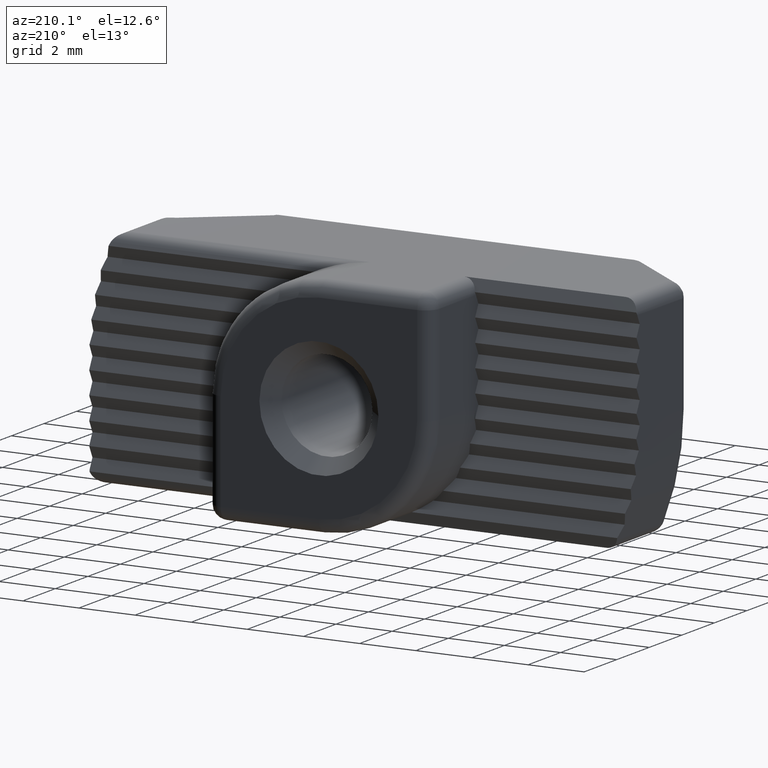
[diagram: clean part render]
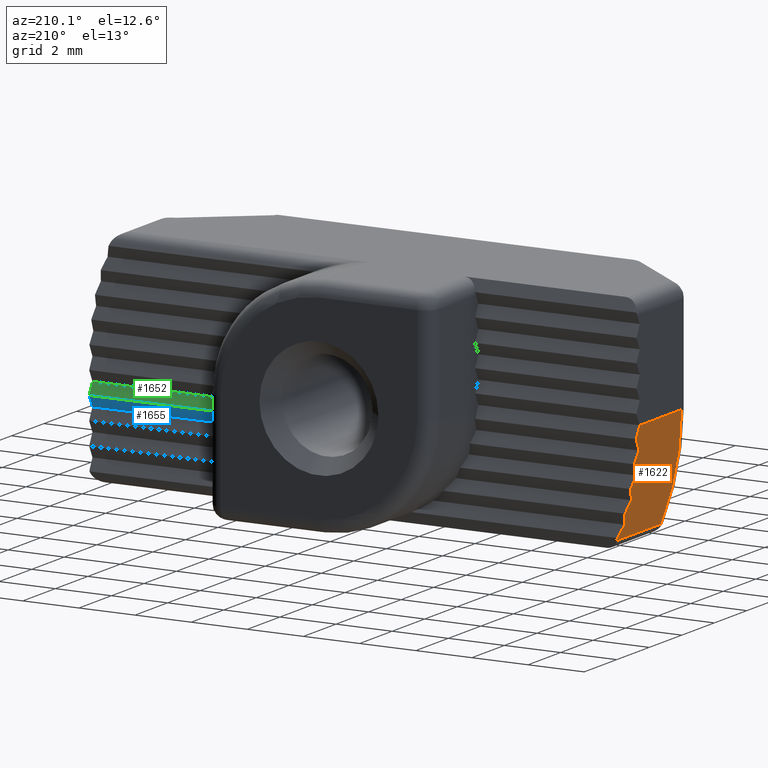
[diagram: same view with three faces highlighted in distinct colors, each labeled with its STEP entity id]
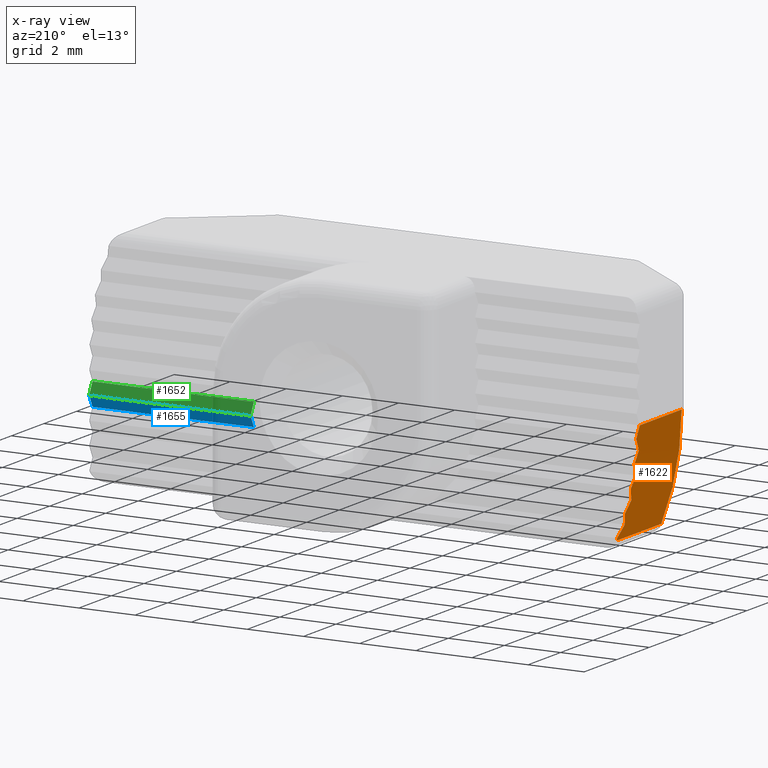
[diagram: x-ray of the same camera — body ghosted, the three highlighted faces saturated]
A machine part, auxiliary view with three faces highlighted in distinct colors.
The next image is the same camera in x-ray (body ghosted, the three faces saturated) — at least one of them is partly hidden behind the body in this view.
Their STEP definitions:

[orange] entity #1622 — the highlighted cylindrical surface (partial cylindrical patch) has radius 9.75 mm, axis along (0, -1, 0).
#70=ELLIPSE('',#1808,10.9008313903115,9.75);
#72=ELLIPSE('',#1811,10.9008313903115,9.75);
#73=ELLIPSE('',#1812,10.9008313903115,9.75);
#74=ELLIPSE('',#1813,10.9008313903115,9.75);
#75=ELLIPSE('',#1814,10.9008313903115,9.75);
#76=ELLIPSE('',#1815,10.9008313903115,9.75);
#77=ELLIPSE('',#1816,10.9008313903115,9.75);
#78=ELLIPSE('',#1817,10.9008313903115,9.75);
#79=ELLIPSE('',#1818,10.9008313903115,9.75);
#80=ELLIPSE('',#1819,10.9008313903115,9.75);
#143=LINE('',#2739,#273);
#160=LINE('',#2802,#290);
#273=VECTOR('',#2167,2.72176206830565);
#290=VECTOR('',#2230,2.56635666290024);
#424=CYLINDRICAL_SURFACE('',#1810,9.75);
#485=FACE_OUTER_BOUND('',#589,.T.);
#589=EDGE_LOOP('',(#1345,#1346,#1347,#1348,#1349,#1350,#1351,#1352,#1353,
#1354,#1355,#1356,#1357));
#687=CIRCLE('',#1783,9.75);
#762=VERTEX_POINT('',#2609);
#778=VERTEX_POINT('',#2729);
#779=VERTEX_POINT('',#2737);
#800=VERTEX_POINT('',#2795);
#802=VERTEX_POINT('',#2801);
#803=VERTEX_POINT('',#2803);
#804=VERTEX_POINT('',#2805);
#805=VERTEX_POINT('',#2807);
#806=VERTEX_POINT('',#2809);
#807=VERTEX_POINT('',#2811);
#808=VERTEX_POINT('',#2813);
#809=VERTEX_POINT('',#2815);
#810=VERTEX_POINT('',#2817);
#967=EDGE_CURVE('',#778,#762,#687,.T.);
#972=EDGE_CURVE('',#762,#779,#143,.T.);
#1000=EDGE_CURVE('',#779,#800,#70,.T.);
#1003=EDGE_CURVE('',#778,#802,#160,.T.);
#1004=EDGE_CURVE('',#803,#802,#72,.T.);
#1005=EDGE_CURVE('',#804,#803,#73,.T.);
#1006=EDGE_CURVE('',#805,#804,#74,.T.);
#1007=EDGE_CURVE('',#806,#805,#75,.T.);
#1008=EDGE_CURVE('',#807,#806,#76,.T.);
#1009=EDGE_CURVE('',#808,#807,#77,.T.);
#1010=EDGE_CURVE('',#809,#808,#78,.T.);
#1011=EDGE_CURVE('',#810,#809,#79,.T.);
#1012=EDGE_CURVE('',#800,#810,#80,.T.);
#1345=ORIENTED_EDGE('',*,*,#972,.F.);
#1346=ORIENTED_EDGE('',*,*,#967,.F.);
#1347=ORIENTED_EDGE('',*,*,#1003,.T.);
#1348=ORIENTED_EDGE('',*,*,#1004,.F.);
#1349=ORIENTED_EDGE('',*,*,#1005,.F.);
#1350=ORIENTED_EDGE('',*,*,#1006,.F.);
#1351=ORIENTED_EDGE('',*,*,#1007,.F.);
#1352=ORIENTED_EDGE('',*,*,#1008,.F.);
#1353=ORIENTED_EDGE('',*,*,#1009,.F.);
#1354=ORIENTED_EDGE('',*,*,#1010,.F.);
#1355=ORIENTED_EDGE('',*,*,#1011,.F.);
#1356=ORIENTED_EDGE('',*,*,#1012,.F.);
#1357=ORIENTED_EDGE('',*,*,#1000,.F.);
#1622=ADVANCED_FACE('',(#485),#424,.T.);
#1783=AXIS2_PLACEMENT_3D('',#2731,#2155,#2156);
#1808=AXIS2_PLACEMENT_3D('',#2796,#2223,#2224);
#1810=AXIS2_PLACEMENT_3D('',#2800,#2228,#2229);
#1811=AXIS2_PLACEMENT_3D('',#2804,#2231,#2232);
#1812=AXIS2_PLACEMENT_3D('',#2806,#2233,#2234);
#1813=AXIS2_PLACEMENT_3D('',#2808,#2235,#2236);
#1814=AXIS2_PLACEMENT_3D('',#2810,#2237,#2238);
#1815=AXIS2_PLACEMENT_3D('',#2812,#2239,#2240);
#1816=AXIS2_PLACEMENT_3D('',#2814,#2241,#2242);
#1817=AXIS2_PLACEMENT_3D('',#2816,#2243,#2244);
#1818=AXIS2_PLACEMENT_3D('',#2818,#2245,#2246);
#1819=AXIS2_PLACEMENT_3D('',#2819,#2247,#2248);
#2155=DIRECTION('center_axis',(0.,-1.,0.));
#2156=DIRECTION('ref_axis',(-0.977744909889507,0.,-0.209797262101202));
#2167=DIRECTION('',(0.,1.,0.));
#2223=DIRECTION('center_axis',(0.,0.894427190999916,-0.447213595499958));
#2224=DIRECTION('ref_axis',(0.,-0.447213595499958,-0.894427190999916));
#2228=DIRECTION('center_axis',(0.,-1.,0.));
#2229=DIRECTION('ref_axis',(-1.,0.,0.));
#2230=DIRECTION('',(0.,1.,0.));
#2231=DIRECTION('center_axis',(0.,0.894427190999916,0.447213595499957));
#2232=DIRECTION('ref_axis',(0.,0.447213595499957,-0.894427190999916));
#2233=DIRECTION('center_axis',(0.,0.894427190999916,-0.447213595499957));
#2234=DIRECTION('ref_axis',(0.,-0.447213595499957,-0.894427190999916));
#2235=DIRECTION('center_axis',(0.,0.894427190999917,0.447213595499956));
#2236=DIRECTION('ref_axis',(0.,0.447213595499956,-0.894427190999917));
#2237=DIRECTION('center_axis',(0.,0.894427190999915,-0.447213595499959));
#2238=DIRECTION('ref_axis',(0.,-0.447213595499959,-0.894427190999915));
#2239=DIRECTION('center_axis',(0.,0.894427190999917,0.447213595499956));
#2240=DIRECTION('ref_axis',(0.,0.447213595499956,-0.894427190999917));
#2241=DIRECTION('center_axis',(0.,0.894427190999915,-0.44721359549996));
#2242=DIRECTION('ref_axis',(0.,-0.44721359549996,-0.894427190999915));
#2243=DIRECTION('center_axis',(0.,0.894427190999916,0.447213595499957));
#2244=DIRECTION('ref_axis',(0.,0.447213595499957,-0.894427190999916));
#2245=DIRECTION('center_axis',(0.,0.894427190999916,-0.447213595499958));
#2246=DIRECTION('ref_axis',(0.,-0.447213595499958,-0.894427190999916));
#2247=DIRECTION('center_axis',(0.,0.894427190999916,0.447213595499957));
#2248=DIRECTION('ref_axis',(0.,0.447213595499957,-0.894427190999916));
#2609=CARTESIAN_POINT('',(-9.02509740259736,-2.76635666290024,-3.68918918918919));
#2729=CARTESIAN_POINT('',(-9.75,-2.76635666290024,0.));
#2731=CARTESIAN_POINT('Origin',(0.,-2.76635666290024,0.));
#2737=CARTESIAN_POINT('',(-9.02509740259736,-0.0445945945945947,-3.68918918918919));
#2739=CARTESIAN_POINT('',(-9.02509740259736,-1.6,-3.68918918918919));
#2795=CARTESIAN_POINT('',(-9.06104298632337,-5.55111512312578E-16,-3.6));
#2796=CARTESIAN_POINT('Origin',(0.,1.8,0.));
#2800=CARTESIAN_POINT('Origin',(0.,-1.6,0.));
#2801=CARTESIAN_POINT('',(-9.75,-0.2,-6.66133814775094E-15));
#2802=CARTESIAN_POINT('',(-9.75,-1.6,0.));
#2803=CARTESIAN_POINT('',(-9.74179141636691,-5.55111512312578E-16,-0.400000000000005));
#2804=CARTESIAN_POINT('Origin',(0.,-0.200000000000003,0.));
#2805=CARTESIAN_POINT('',(-9.7171240601322,-0.2,-0.800000000000005));
#2806=CARTESIAN_POINT('Origin',(0.,0.200000000000002,0.));
#2807=CARTESIAN_POINT('',(-9.67587205372208,-5.55111512312578E-16,-1.2));
#2808=CARTESIAN_POINT('Origin',(0.,-0.6,0.));
#2809=CARTESIAN_POINT('',(-9.61782199876874,-0.2,-1.6));
#2810=CARTESIAN_POINT('Origin',(0.,0.600000000000003,0.));
#2811=CARTESIAN_POINT('',(-9.54266734199616,-5.55111512312578E-16,-2.));
#2812=CARTESIAN_POINT('Origin',(0.,-0.999999999999997,0.));
#2813=CARTESIAN_POINT('',(-9.45,-0.2,-2.4));
#2814=CARTESIAN_POINT('Origin',(0.,1.00000000000001,0.));
#2815=CARTESIAN_POINT('',(-9.33929868887381,-5.55111512312578E-16,-2.8));
#2816=CARTESIAN_POINT('Origin',(0.,-1.4,0.));
#2817=CARTESIAN_POINT('',(-9.20991313748398,-0.2,-3.2));
#2818=CARTESIAN_POINT('Origin',(0.,1.4,0.));
#2819=CARTESIAN_POINT('Origin',(0.,-1.8,0.));

[blue] entity #1655 — the highlighted planar face has unit normal (0, -0.8944, 0.4472).
#120=LINE('',#2546,#250);
#153=LINE('',#2784,#283);
#209=LINE('',#2934,#339);
#210=LINE('',#2936,#340);
#250=VECTOR('',#2002,0.447213595499956);
#283=VECTOR('',#2211,0.447213595499956);
#339=VECTOR('',#2375,5.75);
#340=VECTOR('',#2378,5.75);
#390=PLANE('',#1861);
#518=FACE_OUTER_BOUND('',#622,.T.);
#622=EDGE_LOOP('',(#1497,#1498,#1499,#1500));
#737=VERTEX_POINT('',#2543);
#738=VERTEX_POINT('',#2545);
#796=VERTEX_POINT('',#2781);
#797=VERTEX_POINT('',#2783);
#899=EDGE_CURVE('',#738,#737,#120,.T.);
#994=EDGE_CURVE('',#796,#797,#153,.T.);
#1070=EDGE_CURVE('',#737,#797,#209,.T.);
#1071=EDGE_CURVE('',#796,#738,#210,.T.);
#1497=ORIENTED_EDGE('',*,*,#899,.T.);
#1498=ORIENTED_EDGE('',*,*,#1070,.T.);
#1499=ORIENTED_EDGE('',*,*,#994,.F.);
#1500=ORIENTED_EDGE('',*,*,#1071,.T.);
#1655=ADVANCED_FACE('',(#518),#390,.F.);
#1861=AXIS2_PLACEMENT_3D('',#2941,#2384,#2385);
#2002=DIRECTION('',(0.,0.447213595499959,0.894427190999915));
#2211=DIRECTION('',(0.,0.447213595499959,0.894427190999915));
#2375=DIRECTION('',(1.,-6.03382078600629E-17,1.20676415720126E-16));
#2378=DIRECTION('',(-1.,0.,0.));
#2384=DIRECTION('center_axis',(0.,-0.894427190999915,0.447213595499959));
#2385=DIRECTION('ref_axis',(0.,0.447213595499959,0.894427190999915));
#2543=CARTESIAN_POINT('',(4.,-5.55111512312578E-16,-1.2));
#2545=CARTESIAN_POINT('',(4.,-0.2,-1.6));
#2546=CARTESIAN_POINT('',(4.,-0.23,-1.66));
#2781=CARTESIAN_POINT('',(9.75,-0.2,-1.6));
#2783=CARTESIAN_POINT('',(9.75,-5.55111512312578E-16,-1.2));
#2784=CARTESIAN_POINT('',(9.75,-0.16,-1.52));
#2934=CARTESIAN_POINT('',(9.75,-6.24500451351651E-16,-1.2));
#2936=CARTESIAN_POINT('',(9.75,-0.2,-1.6));
#2941=CARTESIAN_POINT('Origin',(9.75,-0.2,-1.6));

[green] entity #1652 — the highlighted planar face has unit normal (0, -0.8944, -0.4472).
#119=LINE('',#2544,#249);
#154=LINE('',#2786,#284);
#208=LINE('',#2933,#338);
#209=LINE('',#2934,#339);
#249=VECTOR('',#2001,0.447213595499957);
#284=VECTOR('',#2212,0.447213595499957);
#338=VECTOR('',#2374,5.75);
#339=VECTOR('',#2375,5.75);
#387=PLANE('',#1858);
#515=FACE_OUTER_BOUND('',#619,.T.);
#619=EDGE_LOOP('',(#1485,#1486,#1487,#1488));
#736=VERTEX_POINT('',#2541);
#737=VERTEX_POINT('',#2543);
#797=VERTEX_POINT('',#2783);
#798=VERTEX_POINT('',#2785);
#898=EDGE_CURVE('',#737,#736,#119,.T.);
#995=EDGE_CURVE('',#797,#798,#154,.T.);
#1069=EDGE_CURVE('',#798,#736,#208,.T.);
#1070=EDGE_CURVE('',#737,#797,#209,.T.);
#1485=ORIENTED_EDGE('',*,*,#898,.T.);
#1486=ORIENTED_EDGE('',*,*,#1069,.F.);
#1487=ORIENTED_EDGE('',*,*,#995,.F.);
#1488=ORIENTED_EDGE('',*,*,#1070,.F.);
#1652=ADVANCED_FACE('',(#515),#387,.F.);
#1858=AXIS2_PLACEMENT_3D('',#2932,#2372,#2373);
#2001=DIRECTION('',(0.,-0.447213595499956,0.894427190999917));
#2212=DIRECTION('',(0.,-0.447213595499956,0.894427190999917));
#2372=DIRECTION('center_axis',(0.,-0.894427190999917,-0.447213595499956));
#2373=DIRECTION('ref_axis',(0.,-0.447213595499956,0.894427190999917));
#2374=DIRECTION('',(-1.,0.,0.));
#2375=DIRECTION('',(1.,-6.03382078600629E-17,1.20676415720126E-16));
#2541=CARTESIAN_POINT('',(4.,-0.2,-0.800000000000005));
#2543=CARTESIAN_POINT('',(4.,-5.55111512312578E-16,-1.2));
#2544=CARTESIAN_POINT('',(4.,0.109999999999999,-1.42));
#2783=CARTESIAN_POINT('',(9.75,-5.55111512312578E-16,-1.2));
#2785=CARTESIAN_POINT('',(9.75,-0.2,-0.800000000000005));
#2786=CARTESIAN_POINT('',(9.75,-0.539999999999999,-0.120000000000003));
#2932=CARTESIAN_POINT('Origin',(9.75,-5.89805981832114E-16,-1.2));
#2933=CARTESIAN_POINT('',(9.75,-0.2,-0.800000000000005));
#2934=CARTESIAN_POINT('',(9.75,-6.24500451351651E-16,-1.2));